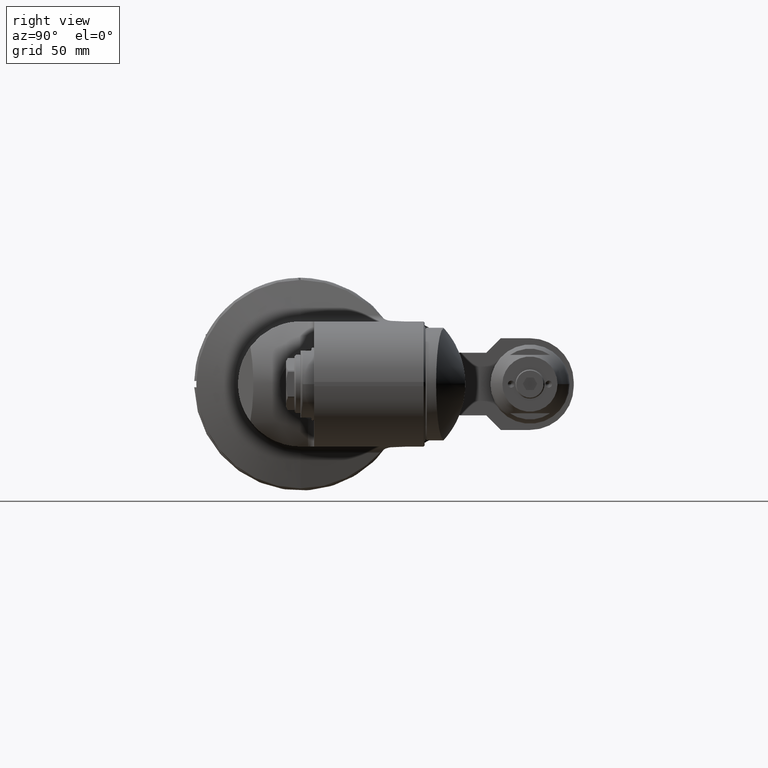
[diagram: clean part render]
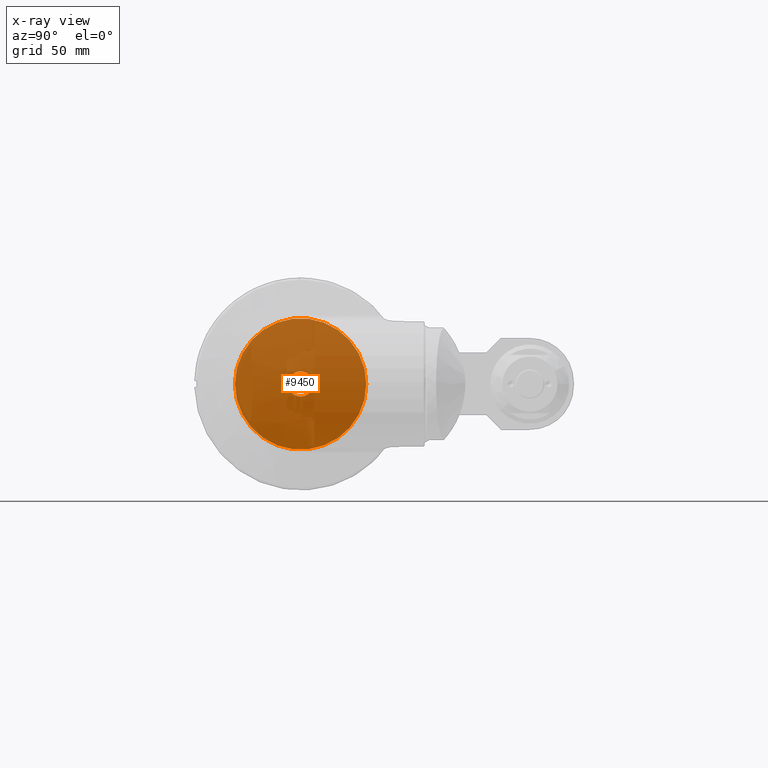
[diagram: x-ray — body ghosted, one internal face saturated and labeled with its STEP entity id]
A machine part, right view, then the same camera in x-ray: the body is ghosted and one INTERNAL B-rep face — a face not visible from any outside direction — is saturated and labeled: STEP entity #9450.
In plain terms, the highlighted planar face has unit normal (1, 0, 0).
Its self-contained STEP definition (entity closure, byte-faithful):
#1951=FACE_BOUND('',#2906,.T.);
#2289=FACE_OUTER_BOUND('',#2905,.T.);
#2905=EDGE_LOOP('',(#7587));
#2906=EDGE_LOOP('',(#7588));
#3387=CIRCLE('',#10090,31.5);
#3513=CIRCLE('',#10375,6.);
#4033=VERTEX_POINT('',#15537);
#4254=VERTEX_POINT('',#16742);
#5086=EDGE_CURVE('',#4033,#4033,#3387,.T.);
#5444=EDGE_CURVE('',#4254,#4254,#3513,.T.);
#7587=ORIENTED_EDGE('',*,*,#5086,.T.);
#7588=ORIENTED_EDGE('',*,*,#5444,.F.);
#9014=PLANE('',#10374);
#9450=ADVANCED_FACE('',(#2289,#1951),#9014,.F.);
#10090=AXIS2_PLACEMENT_3D('',#15539,#11719,#11720);
#10374=AXIS2_PLACEMENT_3D('',#16741,#12456,#12457);
#10375=AXIS2_PLACEMENT_3D('',#16743,#12458,#12459);
#11719=DIRECTION('center_axis',(-1.,0.,0.));
#11720=DIRECTION('ref_axis',(0.,-1.,0.));
#12456=DIRECTION('center_axis',(1.,0.,0.));
#12457=DIRECTION('ref_axis',(0.,-1.,0.));
#12458=DIRECTION('center_axis',(-1.,0.,0.));
#12459=DIRECTION('ref_axis',(0.,0.,-1.));
#15537=CARTESIAN_POINT('',(-156.999999999996,31.4999999999933,3.85763741731334E-15));
#15539=CARTESIAN_POINT('Origin',(-157.,0.,0.));
#16741=CARTESIAN_POINT('Origin',(-157.,37.,0.));
#16742=CARTESIAN_POINT('',(-157.,0.,-6.));
#16743=CARTESIAN_POINT('Origin',(-157.,0.,0.));